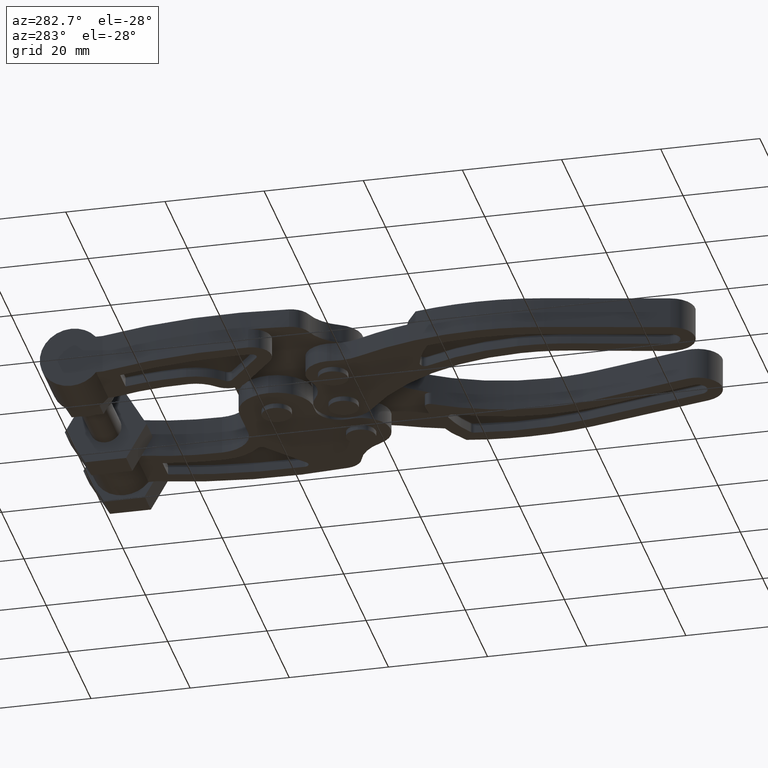
[diagram: clean part render]
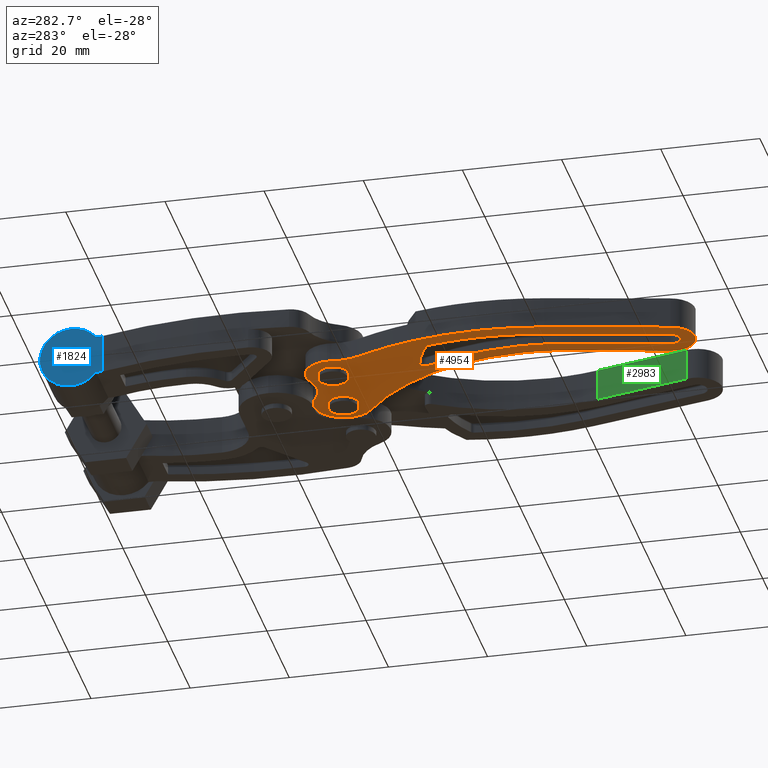
[diagram: same view with three faces highlighted in distinct colors, each labeled with its STEP entity id]
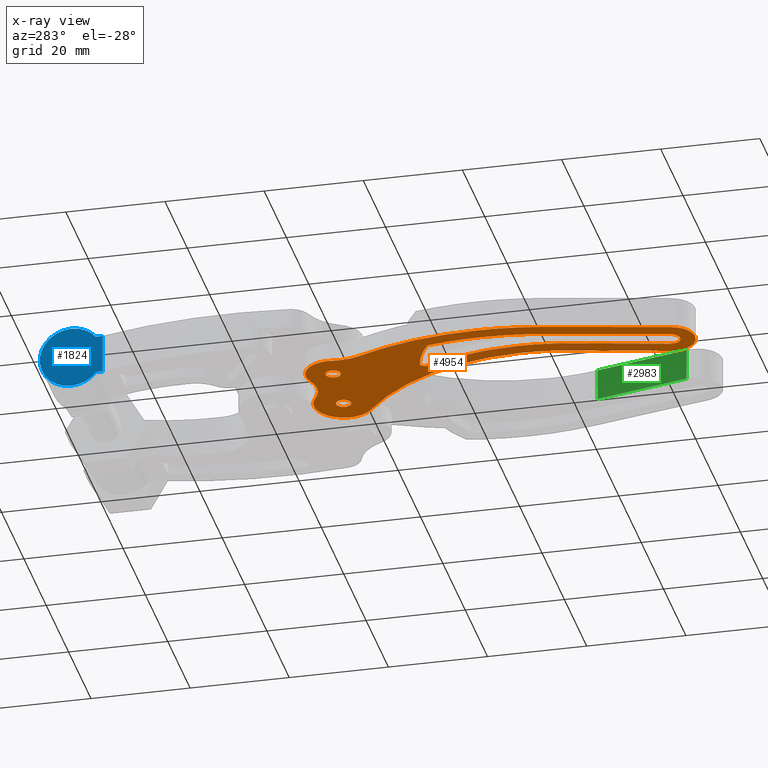
[diagram: x-ray of the same camera — body ghosted, the three highlighted faces saturated]
A machine part, auxiliary view with three faces highlighted in distinct colors.
The next image is the same camera in x-ray (body ghosted, the three faces saturated) — at least one of them is partly hidden behind the body in this view.
Their STEP definitions:

[orange] entity #4954 — the highlighted planar face has unit normal (0, 0, 1).
#7 = VERTEX_POINT ( 'NONE', #7761 ) ;
#15 = CARTESIAN_POINT ( 'NONE',  ( -12.18999999999992000, -82.15000000000009100, -3.900000000000000800 ) ) ;
#22 = VERTEX_POINT ( 'NONE', #8411 ) ;
#33 = AXIS2_PLACEMENT_3D ( 'NONE', #1773, #6457, #2440 ) ;
#37 = EDGE_CURVE ( 'NONE', #6304, #1316, #6363, .T. ) ;
#39 = DIRECTION ( 'NONE',  ( 1.000000000000000000, 0.0000000000000000000, 0.0000000000000000000 ) ) ;
#116 = EDGE_CURVE ( 'NONE', #4652, #6438, #2375, .T. ) ;
#228 = CIRCLE ( 'NONE', #4955, 1.500000000000001300 ) ;
#229 = CARTESIAN_POINT ( 'NONE',  ( 35.90000000000007000, -45.70000000000008800, -3.900000000000000800 ) ) ;
#231 = FACE_BOUND ( 'NONE', #8641, .T. ) ;
#270 = VERTEX_POINT ( 'NONE', #2428 ) ;
#312 = AXIS2_PLACEMENT_3D ( 'NONE', #6137, #2798, #7474 ) ;
#366 = DIRECTION ( 'NONE',  ( 0.0000000000000000000, 0.0000000000000000000, -1.000000000000000000 ) ) ;
#371 = DIRECTION ( 'NONE',  ( 0.0000000000000000000, 0.0000000000000000000, 1.000000000000000000 ) ) ;
#375 = CARTESIAN_POINT ( 'NONE',  ( -11.79261587243734300, -62.08773654748255000, -3.900000000000000800 ) ) ;
#499 = EDGE_CURVE ( 'NONE', #5284, #270, #4246, .T. ) ;
#509 = ORIENTED_EDGE ( 'NONE', *, *, #4927, .F. ) ;
#539 = VERTEX_POINT ( 'NONE', #7956 ) ;
#592 = ORIENTED_EDGE ( 'NONE', *, *, #4975, .F. ) ;
#626 = VERTEX_POINT ( 'NONE', #4154 ) ;
#645 = CIRCLE ( 'NONE', #33, 6.999999999999952000 ) ;
#682 = DIRECTION ( 'NONE',  ( -1.000000000000000000, 0.0000000000000000000, 0.0000000000000000000 ) ) ;
#688 = CARTESIAN_POINT ( 'NONE',  ( -7.323984661688473200, -81.00026319215328400, -3.900000000000000800 ) ) ;
#699 = AXIS2_PLACEMENT_3D ( 'NONE', #750, #5425, #1427 ) ;
#732 = VERTEX_POINT ( 'NONE', #1968 ) ;
#750 = CARTESIAN_POINT ( 'NONE',  ( 30.05511603704109900, -52.20000000000008100, -3.900000000000000800 ) ) ;
#814 = VECTOR ( 'NONE', #3851, 1000.000000000000100 ) ;
#861 = CARTESIAN_POINT ( 'NONE',  ( 6.591949208711867000E-014, -13.50000000000008500, -3.900000000000000800 ) ) ;
#868 = CARTESIAN_POINT ( 'NONE',  ( -12.94488396295891200, -52.20000000000008100, -3.900000000000000800 ) ) ;
#898 = DIRECTION ( 'NONE',  ( -1.000000000000000000, 0.0000000000000000000, 0.0000000000000000000 ) ) ;
#901 = CARTESIAN_POINT ( 'NONE',  ( 30.05511603704109900, -52.20000000000008100, -3.900000000000000800 ) ) ;
#1070 = DIRECTION ( 'NONE',  ( 1.000000000000000000, 0.0000000000000000000, -0.0000000000000000000 ) ) ;
#1113 = DIRECTION ( 'NONE',  ( 0.0000000000000000000, 0.0000000000000000000, -1.000000000000000000 ) ) ;
#1123 = DIRECTION ( 'NONE',  ( 1.000000000000000000, 0.0000000000000000000, 0.0000000000000000000 ) ) ;
#1214 = CARTESIAN_POINT ( 'NONE',  ( -12.49999999999999100, -14.20000000000000100, -3.900000000000000800 ) ) ;
#1294 = CIRCLE ( 'NONE', #4100, 60.00000000000000000 ) ;
#1316 = VERTEX_POINT ( 'NONE', #4931 ) ;
#1328 = AXIS2_PLACEMENT_3D ( 'NONE', #6386, #5061, #1070 ) ;
#1349 = CIRCLE ( 'NONE', #1507, 43.00000000000000700 ) ;
#1373 = CARTESIAN_POINT ( 'NONE',  ( -15.94488396295894900, -52.20000000000008100, -3.900000000000000800 ) ) ;
#1393 = AXIS2_PLACEMENT_3D ( 'NONE', #4172, #8192, #3501 ) ;
#1427 = DIRECTION ( 'NONE',  ( 1.000000000000000000, 0.0000000000000000000, 0.0000000000000000000 ) ) ;
#1462 = LINE ( 'NONE', #688, #1671 ) ;
#1504 = CARTESIAN_POINT ( 'NONE',  ( -13.99999999999999100, -14.20000000000000100, -3.900000000000000800 ) ) ;
#1507 = AXIS2_PLACEMENT_3D ( 'NONE', #8046, #4018, #39 ) ;
#1518 = VERTEX_POINT ( 'NONE', #8469 ) ;
#1577 = CIRCLE ( 'NONE', #6149, 0.9999999999999974500 ) ;
#1663 = LINE ( 'NONE', #2877, #6590 ) ;
#1671 = VECTOR ( 'NONE', #6052, 1000.000000000000000 ) ;
#1689 = VERTEX_POINT ( 'NONE', #3277 ) ;
#1773 = CARTESIAN_POINT ( 'NONE',  ( -7.378959491937813200, -2.797151929680732800, -3.900000000000000800 ) ) ;
#1880 = VERTEX_POINT ( 'NONE', #375 ) ;
#1882 = ORIENTED_EDGE ( 'NONE', *, *, #4457, .F. ) ;
#1885 = DIRECTION ( 'NONE',  ( -1.000000000000000000, 0.0000000000000000000, 0.0000000000000000000 ) ) ;
#1891 = ORIENTED_EDGE ( 'NONE', *, *, #6163, .F. ) ;
#1897 = EDGE_CURVE ( 'NONE', #1316, #3756, #6558, .T. ) ;
#1957 = ORIENTED_EDGE ( 'NONE', *, *, #5773, .F. ) ;
#1968 = CARTESIAN_POINT ( 'NONE',  ( -17.92922369092657000, -15.07950560764612500, -3.900000000000000800 ) ) ;
#2022 = DIRECTION ( 'NONE',  ( 0.0000000000000000000, 0.0000000000000000000, 1.000000000000000000 ) ) ;
#2050 = CARTESIAN_POINT ( 'NONE',  ( -3.405673611663585700, -8.560223967544979800, -3.900000000000000800 ) ) ;
#2131 = EDGE_CURVE ( 'NONE', #1518, #732, #2970, .T. ) ;
#2168 = CARTESIAN_POINT ( 'NONE',  ( -10.24674217645259100, -9.182746849059549600, -3.900000000000000800 ) ) ;
#2200 = CARTESIAN_POINT ( 'NONE',  ( -14.13976923983679300, -82.59542104955406200, -3.900000000000000800 ) ) ;
#2205 = CIRCLE ( 'NONE', #8657, 4.999999999999997300 ) ;
#2291 = ORIENTED_EDGE ( 'NONE', *, *, #7551, .F. ) ;
#2375 = CIRCLE ( 'NONE', #6743, 6.000000000000000000 ) ;
#2388 = VERTEX_POINT ( 'NONE', #868 ) ;
#2395 = CARTESIAN_POINT ( 'NONE',  ( -14.13976923983679300, -82.59542104955406200, -3.900000000000000800 ) ) ;
#2414 = CIRCLE ( 'NONE', #4737, 1.499999999999999100 ) ;
#2428 = CARTESIAN_POINT ( 'NONE',  ( -14.71222507542424100, -62.77757863219067500, -3.900000000000000800 ) ) ;
#2431 = CIRCLE ( 'NONE', #5019, 1.500000000000001300 ) ;
#2440 = DIRECTION ( 'NONE',  ( 1.000000000000000000, 0.0000000000000000000, 0.0000000000000000000 ) ) ;
#2662 = VERTEX_POINT ( 'NONE', #6295 ) ;
#2710 = ORIENTED_EDGE ( 'NONE', *, *, #4547, .F. ) ;
#2721 = DIRECTION ( 'NONE',  ( 0.0000000000000000000, 0.0000000000000000000, -1.000000000000000000 ) ) ;
#2798 = DIRECTION ( 'NONE',  ( 0.0000000000000000000, 0.0000000000000000000, -1.000000000000000000 ) ) ;
#2877 = CARTESIAN_POINT ( 'NONE',  ( -17.06442309959220400, -83.26355262388504700, -3.900000000000000800 ) ) ;
#2969 = CARTESIAN_POINT ( 'NONE',  ( -10.99999999999998900, -14.20000000000000100, -3.900000000000000800 ) ) ;
#2970 = CIRCLE ( 'NONE', #5514, 5.500000000000000900 ) ;
#2982 = CARTESIAN_POINT ( 'NONE',  ( -19.70911852159611400, -34.66817969679129900, -3.900000000000000800 ) ) ;
#2985 = ORIENTED_EDGE ( 'NONE', *, *, #1897, .F. ) ;
#2998 = AXIS2_PLACEMENT_3D ( 'NONE', #15, #4679, #682 ) ;
#3016 = DIRECTION ( 'NONE',  ( 0.0000000000000000000, 0.0000000000000000000, -1.000000000000000000 ) ) ;
#3050 = PLANE ( 'NONE',  #1328 ) ;
#3115 = CARTESIAN_POINT ( 'NONE',  ( -12.49999999999999100, -14.20000000000000100, -3.900000000000000800 ) ) ;
#3159 = AXIS2_PLACEMENT_3D ( 'NONE', #5041, #366, #4346 ) ;
#3162 = CIRCLE ( 'NONE', #1393, 46.00000000000005000 ) ;
#3172 = DIRECTION ( 'NONE',  ( 0.0000000000000000000, 0.0000000000000000000, 1.000000000000000000 ) ) ;
#3176 = EDGE_CURVE ( 'NONE', #626, #5284, #3162, .T. ) ;
#3190 = DIRECTION ( 'NONE',  ( 0.0000000000000000000, 0.0000000000000000000, -1.000000000000000000 ) ) ;
#3277 = CARTESIAN_POINT ( 'NONE',  ( -12.96421543139628700, -31.78095209741411900, -3.900000000000000800 ) ) ;
#3330 = EDGE_CURVE ( 'NONE', #732, #7943, #7970, .T. ) ;
#3337 = CARTESIAN_POINT ( 'NONE',  ( 3.680218290249986300, -18.23877551020416700, -3.900000000000000800 ) ) ;
#3360 = VECTOR ( 'NONE', #4412, 1000.000000000000100 ) ;
#3490 = AXIS2_PLACEMENT_3D ( 'NONE', #5106, #1113, #5793 ) ;
#3500 = DIRECTION ( 'NONE',  ( -1.000000000000000000, 0.0000000000000000000, 0.0000000000000000000 ) ) ;
#3501 = DIRECTION ( 'NONE',  ( -1.000000000000000000, 0.0000000000000000000, 0.0000000000000000000 ) ) ;
#3686 = DIRECTION ( 'NONE',  ( 0.0000000000000000000, 0.0000000000000000000, 1.000000000000000000 ) ) ;
#3756 = VERTEX_POINT ( 'NONE', #2982 ) ;
#3768 = DIRECTION ( 'NONE',  ( -1.000000000000000000, 0.0000000000000000000, 0.0000000000000000000 ) ) ;
#3851 = DIRECTION ( 'NONE',  ( 0.2299473615693592700, -0.9732030676622891500, 0.0000000000000000000 ) ) ;
#3891 = AXIS2_PLACEMENT_3D ( 'NONE', #8427, #7783, #1123 ) ;
#3924 = ORIENTED_EDGE ( 'NONE', *, *, #8546, .F. ) ;
#4018 = DIRECTION ( 'NONE',  ( -0.0000000000000000000, -0.0000000000000000000, -1.000000000000000000 ) ) ;
#4100 = AXIS2_PLACEMENT_3D ( 'NONE', #4355, #371, #5048 ) ;
#4154 = CARTESIAN_POINT ( 'NONE',  ( -11.82292939832786300, -33.16767721708215100, -3.900000000000000800 ) ) ;
#4172 = CARTESIAN_POINT ( 'NONE',  ( 30.05511603704109900, -52.20000000000008100, -3.900000000000000800 ) ) ;
#4221 = EDGE_CURVE ( 'NONE', #539, #8143, #1663, .T. ) ;
#4240 = EDGE_LOOP ( 'NONE', ( #6792, #2710 ) ) ;
#4246 = CIRCLE ( 'NONE', #6853, 46.00000000000005000 ) ;
#4291 = VERTEX_POINT ( 'NONE', #2969 ) ;
#4298 = CIRCLE ( 'NONE', #6542, 56.99999999999999300 ) ;
#4346 = DIRECTION ( 'NONE',  ( -1.000000000000000000, 0.0000000000000000000, 0.0000000000000000000 ) ) ;
#4355 = CARTESIAN_POINT ( 'NONE',  ( 35.90000000000007000, -45.70000000000008800, -3.900000000000000800 ) ) ;
#4359 = LINE ( 'NONE', #8543, #814 ) ;
#4403 = ORIENTED_EDGE ( 'NONE', *, *, #2131, .F. ) ;
#4412 = DIRECTION ( 'NONE',  ( -0.2227105247769928000, 0.9748846199184581000, 0.0000000000000000000 ) ) ;
#4457 = EDGE_CURVE ( 'NONE', #6438, #5923, #645, .T. ) ;
#4503 = ORIENTED_EDGE ( 'NONE', *, *, #6398, .F. ) ;
#4547 = EDGE_CURVE ( 'NONE', #4291, #6511, #228, .T. ) ;
#4581 = ORIENTED_EDGE ( 'NONE', *, *, #4642, .F. ) ;
#4602 = EDGE_LOOP ( 'NONE', ( #5787, #7428 ) ) ;
#4628 = CARTESIAN_POINT ( 'NONE',  ( -18.70046242223832100, -20.82452003924894200, -3.900000000000000800 ) ) ;
#4634 = AXIS2_PLACEMENT_3D ( 'NONE', #6033, #2022, #6701 ) ;
#4642 = EDGE_CURVE ( 'NONE', #7509, #5935, #6614, .T. ) ;
#4652 = VERTEX_POINT ( 'NONE', #3337 ) ;
#4679 = DIRECTION ( 'NONE',  ( 0.0000000000000000000, 0.0000000000000000000, -1.000000000000000000 ) ) ;
#4737 = AXIS2_PLACEMENT_3D ( 'NONE', #6729, #2721, #7393 ) ;
#4893 = DIRECTION ( 'NONE',  ( 0.0000000000000000000, 0.0000000000000000000, -1.000000000000000000 ) ) ;
#4906 = EDGE_CURVE ( 'NONE', #3756, #1689, #5560, .T. ) ;
#4927 = EDGE_CURVE ( 'NONE', #8143, #22, #2205, .T. ) ;
#4931 = CARTESIAN_POINT ( 'NONE',  ( -20.14780314990449700, -35.32484881702705300, -3.900000000000000800 ) ) ;
#4954 = ADVANCED_FACE ( 'NONE', ( #7545, #5351, #231, #7142 ), #3050, .F. ) ;
#4955 = AXIS2_PLACEMENT_3D ( 'NONE', #1214, #5903, #1885 ) ;
#4975 = EDGE_CURVE ( 'NONE', #5935, #6953, #5140, .T. ) ;
#5019 = AXIS2_PLACEMENT_3D ( 'NONE', #3115, #7796, #3768 ) ;
#5041 = CARTESIAN_POINT ( 'NONE',  ( 35.90000000000007000, -45.70000000000008800, -3.900000000000000800 ) ) ;
#5048 = DIRECTION ( 'NONE',  ( 1.000000000000000000, 0.0000000000000000000, 0.0000000000000000000 ) ) ;
#5061 = DIRECTION ( 'NONE',  ( 0.0000000000000000000, 0.0000000000000000000, 1.000000000000000000 ) ) ;
#5080 = EDGE_LOOP ( 'NONE', ( #509, #7146, #1891, #8114, #6002, #4403, #3924, #1882, #7689, #8550, #4503, #1957 ) ) ;
#5106 = CARTESIAN_POINT ( 'NONE',  ( -1.516845171422362400E-014, -13.50000000000003200, -3.900000000000000800 ) ) ;
#5140 = LINE ( 'NONE', #2395, #3360 ) ;
#5212 = EDGE_CURVE ( 'NONE', #2662, #5820, #2414, .T. ) ;
#5284 = VERTEX_POINT ( 'NONE', #1373 ) ;
#5334 = CIRCLE ( 'NONE', #3490, 1.499999999999999100 ) ;
#5351 = FACE_BOUND ( 'NONE', #4602, .T. ) ;
#5411 = ORIENTED_EDGE ( 'NONE', *, *, #37, .F. ) ;
#5425 = DIRECTION ( 'NONE',  ( -0.0000000000000000000, -0.0000000000000000000, -1.000000000000000000 ) ) ;
#5514 = AXIS2_PLACEMENT_3D ( 'NONE', #6957, #7622, #8297 ) ;
#5525 = EDGE_CURVE ( 'NONE', #5820, #2662, #5334, .T. ) ;
#5538 = DIRECTION ( 'NONE',  ( 0.2227105247769919900, -0.9748846199184583200, -0.0000000000000000000 ) ) ;
#5544 = DIRECTION ( 'NONE',  ( 1.000000000000000000, 0.0000000000000000000, 0.0000000000000000000 ) ) ;
#5560 = CIRCLE ( 'NONE', #7316, 21.49999999999999600 ) ;
#5773 = EDGE_CURVE ( 'NONE', #22, #1880, #1462, .T. ) ;
#5787 = ORIENTED_EDGE ( 'NONE', *, *, #5212, .F. ) ;
#5793 = DIRECTION ( 'NONE',  ( -1.000000000000000000, 0.0000000000000000000, 0.0000000000000000000 ) ) ;
#5794 = CIRCLE ( 'NONE', #699, 43.00000000000000700 ) ;
#5820 = VERTEX_POINT ( 'NONE', #6078 ) ;
#5903 = DIRECTION ( 'NONE',  ( 0.0000000000000000000, 0.0000000000000000000, -1.000000000000000000 ) ) ;
#5923 = VERTEX_POINT ( 'NONE', #2168 ) ;
#5935 = VERTEX_POINT ( 'NONE', #2200 ) ;
#6002 = ORIENTED_EDGE ( 'NONE', *, *, #3330, .F. ) ;
#6033 = CARTESIAN_POINT ( 'NONE',  ( -12.49999999999992700, -14.20000000000008500, -3.900000000000000800 ) ) ;
#6037 = ORIENTED_EDGE ( 'NONE', *, *, #8393, .F. ) ;
#6052 = DIRECTION ( 'NONE',  ( -0.2299473615693601000, 0.9732030676622890300, 0.0000000000000000000 ) ) ;
#6078 = CARTESIAN_POINT ( 'NONE',  ( 1.499999999999984000, -13.50000000000003200, -3.900000000000000800 ) ) ;
#6137 = CARTESIAN_POINT ( 'NONE',  ( -19.16450835780095800, -35.50686901321957100, -3.900000000000000800 ) ) ;
#6149 = AXIS2_PLACEMENT_3D ( 'NONE', #7203, #3190, #7874 ) ;
#6153 = AXIS2_PLACEMENT_3D ( 'NONE', #7181, #3172, #7849 ) ;
#6163 = EDGE_CURVE ( 'NONE', #7, #539, #7938, .T. ) ;
#6190 = CARTESIAN_POINT ( 'NONE',  ( -10.24359386467538300, -81.69010527686137400, -3.900000000000000800 ) ) ;
#6199 = EDGE_CURVE ( 'NONE', #270, #7509, #4359, .T. ) ;
#6295 = CARTESIAN_POINT ( 'NONE',  ( -1.500000000000014400, -13.50000000000003200, -3.900000000000000800 ) ) ;
#6304 = VERTEX_POINT ( 'NONE', #7288 ) ;
#6363 = CIRCLE ( 'NONE', #3159, 56.99999999999999300 ) ;
#6386 = CARTESIAN_POINT ( 'NONE',  ( -12.18999999999992000, -82.15000000000009100, -3.900000000000000800 ) ) ;
#6398 = EDGE_CURVE ( 'NONE', #1880, #2388, #1349, .T. ) ;
#6438 = VERTEX_POINT ( 'NONE', #2050 ) ;
#6457 = DIRECTION ( 'NONE',  ( -0.0000000000000000000, -0.0000000000000000000, -1.000000000000000000 ) ) ;
#6511 = VERTEX_POINT ( 'NONE', #1504 ) ;
#6542 = AXIS2_PLACEMENT_3D ( 'NONE', #229, #4893, #898 ) ;
#6558 = CIRCLE ( 'NONE', #312, 0.9999999999999592500 ) ;
#6590 = VECTOR ( 'NONE', #5538, 1000.000000000000000 ) ;
#6614 = CIRCLE ( 'NONE', #2998, 1.999999999999956700 ) ;
#6701 = DIRECTION ( 'NONE',  ( 1.000000000000000000, 0.0000000000000000000, 0.0000000000000000000 ) ) ;
#6729 = CARTESIAN_POINT ( 'NONE',  ( -1.516845171422362400E-014, -13.50000000000003200, -3.900000000000000800 ) ) ;
#6743 = AXIS2_PLACEMENT_3D ( 'NONE', #861, #8189, #5544 ) ;
#6792 = ORIENTED_EDGE ( 'NONE', *, *, #7794, .F. ) ;
#6801 = CIRCLE ( 'NONE', #4634, 5.500000000000000900 ) ;
#6842 = CARTESIAN_POINT ( 'NONE',  ( -19.66842333535204200, -58.39449991228858000, -3.900000000000000800 ) ) ;
#6850 = DIRECTION ( 'NONE',  ( -0.0000000000000000000, -0.0000000000000000000, 1.000000000000000000 ) ) ;
#6853 = AXIS2_PLACEMENT_3D ( 'NONE', #901, #6850, #3500 ) ;
#6953 = VERTEX_POINT ( 'NONE', #6842 ) ;
#6957 = CARTESIAN_POINT ( 'NONE',  ( -12.49999999999992700, -14.20000000000008500, -3.900000000000000800 ) ) ;
#7032 = CARTESIAN_POINT ( 'NONE',  ( -7.999999999999923600, -52.70000000000008100, -3.900000000000000800 ) ) ;
#7142 = FACE_OUTER_BOUND ( 'NONE', #5080, .T. ) ;
#7146 = ORIENTED_EDGE ( 'NONE', *, *, #4221, .F. ) ;
#7181 = CARTESIAN_POINT ( 'NONE',  ( 35.90000000000007000, -45.70000000000008800, -3.900000000000000800 ) ) ;
#7203 = CARTESIAN_POINT ( 'NONE',  ( -12.73332169040110700, -32.75393106962742700, -3.900000000000000800 ) ) ;
#7288 = CARTESIAN_POINT ( 'NONE',  ( -21.09999999999992300, -45.70000000000008800, -3.900000000000000800 ) ) ;
#7316 = AXIS2_PLACEMENT_3D ( 'NONE', #7032, #3016, #7688 ) ;
#7393 = DIRECTION ( 'NONE',  ( -1.000000000000000000, 0.0000000000000000000, 0.0000000000000000000 ) ) ;
#7420 = ORIENTED_EDGE ( 'NONE', *, *, #4906, .F. ) ;
#7428 = ORIENTED_EDGE ( 'NONE', *, *, #5525, .F. ) ;
#7433 = EDGE_CURVE ( 'NONE', #2388, #4652, #5794, .T. ) ;
#7474 = DIRECTION ( 'NONE',  ( -1.000000000000000000, 0.0000000000000000000, 0.0000000000000000000 ) ) ;
#7509 = VERTEX_POINT ( 'NONE', #6190 ) ;
#7545 = FACE_BOUND ( 'NONE', #4240, .T. ) ;
#7551 = EDGE_CURVE ( 'NONE', #6953, #6304, #4298, .T. ) ;
#7552 = CARTESIAN_POINT ( 'NONE',  ( -17.06442309959220400, -83.26355262388504700, -3.900000000000000800 ) ) ;
#7622 = DIRECTION ( 'NONE',  ( 0.0000000000000000000, 0.0000000000000000000, 1.000000000000000000 ) ) ;
#7688 = DIRECTION ( 'NONE',  ( -1.000000000000000000, 0.0000000000000000000, 0.0000000000000000000 ) ) ;
#7689 = ORIENTED_EDGE ( 'NONE', *, *, #116, .F. ) ;
#7713 = EDGE_CURVE ( 'NONE', #7943, #7, #1294, .T. ) ;
#7718 = CARTESIAN_POINT ( 'NONE',  ( -12.18999999999992000, -82.15000000000009100, -3.900000000000000800 ) ) ;
#7761 = CARTESIAN_POINT ( 'NONE',  ( -24.09999999999992000, -45.70000000000008800, -3.900000000000000800 ) ) ;
#7783 = DIRECTION ( 'NONE',  ( -0.0000000000000000000, -0.0000000000000000000, -1.000000000000000000 ) ) ;
#7794 = EDGE_CURVE ( 'NONE', #6511, #4291, #2431, .T. ) ;
#7796 = DIRECTION ( 'NONE',  ( 0.0000000000000000000, 0.0000000000000000000, -1.000000000000000000 ) ) ;
#7849 = DIRECTION ( 'NONE',  ( 1.000000000000000000, 0.0000000000000000000, 0.0000000000000000000 ) ) ;
#7874 = DIRECTION ( 'NONE',  ( -1.000000000000000000, 0.0000000000000000000, 0.0000000000000000000 ) ) ;
#7938 = CIRCLE ( 'NONE', #6153, 60.00000000000000000 ) ;
#7943 = VERTEX_POINT ( 'NONE', #4628 ) ;
#7956 = CARTESIAN_POINT ( 'NONE',  ( -22.59307719510741900, -59.06263148661962200, -3.900000000000000800 ) ) ;
#7970 = CIRCLE ( 'NONE', #3891, 9.999999999999960900 ) ;
#8046 = CARTESIAN_POINT ( 'NONE',  ( 30.05511603704109900, -52.20000000000008100, -3.900000000000000800 ) ) ;
#8114 = ORIENTED_EDGE ( 'NONE', *, *, #7713, .F. ) ;
#8143 = VERTEX_POINT ( 'NONE', #7552 ) ;
#8174 = ORIENTED_EDGE ( 'NONE', *, *, #499, .F. ) ;
#8189 = DIRECTION ( 'NONE',  ( 0.0000000000000000000, 0.0000000000000000000, 1.000000000000000000 ) ) ;
#8192 = DIRECTION ( 'NONE',  ( -0.0000000000000000000, -0.0000000000000000000, 1.000000000000000000 ) ) ;
#8297 = DIRECTION ( 'NONE',  ( 1.000000000000000000, 0.0000000000000000000, 0.0000000000000000000 ) ) ;
#8393 = EDGE_CURVE ( 'NONE', #1689, #626, #1577, .T. ) ;
#8397 = ORIENTED_EDGE ( 'NONE', *, *, #3176, .F. ) ;
#8406 = DIRECTION ( 'NONE',  ( 1.000000000000000000, 0.0000000000000000000, 0.0000000000000000000 ) ) ;
#8411 = CARTESIAN_POINT ( 'NONE',  ( -7.323984661688473200, -81.00026319215328400, -3.900000000000000800 ) ) ;
#8427 = CARTESIAN_POINT ( 'NONE',  ( -27.80053949261134600, -16.67860671245708900, -3.900000000000000800 ) ) ;
#8469 = CARTESIAN_POINT ( 'NONE',  ( -17.99999999999992900, -14.20000000000008500, -3.900000000000000800 ) ) ;
#8535 = ORIENTED_EDGE ( 'NONE', *, *, #6199, .F. ) ;
#8543 = CARTESIAN_POINT ( 'NONE',  ( -14.71222507542423900, -62.77757863219067500, -3.900000000000000800 ) ) ;
#8546 = EDGE_CURVE ( 'NONE', #5923, #1518, #6801, .T. ) ;
#8550 = ORIENTED_EDGE ( 'NONE', *, *, #7433, .F. ) ;
#8641 = EDGE_LOOP ( 'NONE', ( #8535, #8174, #8397, #6037, #7420, #2985, #5411, #2291, #592, #4581 ) ) ;
#8657 = AXIS2_PLACEMENT_3D ( 'NONE', #7718, #3686, #8406 ) ;

[blue] entity #1824 — the highlighted planar face has unit normal (1, 0, 0).
#65 = VERTEX_POINT ( 'NONE', #1805 ) ;
#147 = ORIENTED_EDGE ( 'NONE', *, *, #1351, .F. ) ;
#404 = CARTESIAN_POINT ( 'NONE',  ( -23.70000000000002100, 36.09999999999998000, 6.250000000000000000 ) ) ;
#472 = AXIS2_PLACEMENT_3D ( 'NONE', #7895, #1140, #7750 ) ;
#553 = VECTOR ( 'NONE', #5675, 1000.000000000000000 ) ;
#762 = LINE ( 'NONE', #8331, #553 ) ;
#866 = VERTEX_POINT ( 'NONE', #8533 ) ;
#906 = EDGE_LOOP ( 'NONE', ( #7795, #147, #8119, #2740, #1527, #2378 ) ) ;
#1140 = DIRECTION ( 'NONE',  ( 1.000000000000000000, 2.565222340100703000E-016, 6.940378706500224900E-018 ) ) ;
#1261 = CARTESIAN_POINT ( 'NONE',  ( -23.70000000000002100, 36.09999999999998000, -6.450000000000002800 ) ) ;
#1330 = AXIS2_PLACEMENT_3D ( 'NONE', #6198, #2174, #6862 ) ;
#1351 = EDGE_CURVE ( 'NONE', #1470, #3257, #8332, .T. ) ;
#1419 = DIRECTION ( 'NONE',  ( 0.0000000000000000000, 0.0000000000000000000, -1.000000000000000000 ) ) ;
#1470 = VERTEX_POINT ( 'NONE', #404 ) ;
#1527 = ORIENTED_EDGE ( 'NONE', *, *, #2624, .T. ) ;
#1716 = CIRCLE ( 'NONE', #1330, 6.350000000000001400 ) ;
#1735 = EDGE_CURVE ( 'NONE', #65, #7294, #2246, .T. ) ;
#1805 = CARTESIAN_POINT ( 'NONE',  ( -23.70000000000002100, 31.08876262785324600, -3.999999999999998200 ) ) ;
#1816 = DIRECTION ( 'NONE',  ( 6.940378706500224900E-018, -2.168418717033176300E-019, -1.000000000000000000 ) ) ;
#1824 = ADVANCED_FACE ( 'NONE', ( #5602 ), #4094, .F. ) ;
#2174 = DIRECTION ( 'NONE',  ( 1.000000000000000000, 2.565222340100703000E-016, 6.940378706500224900E-018 ) ) ;
#2246 = CIRCLE ( 'NONE', #472, 6.350000000000001400 ) ;
#2256 = CARTESIAN_POINT ( 'NONE',  ( -23.70000000000001400, 29.74999999999997900, -4.000000000000000900 ) ) ;
#2304 = EDGE_CURVE ( 'NONE', #7294, #1470, #1716, .T. ) ;
#2378 = ORIENTED_EDGE ( 'NONE', *, *, #7180, .T. ) ;
#2438 = AXIS2_PLACEMENT_3D ( 'NONE', #4743, #5417, #1419 ) ;
#2624 = EDGE_CURVE ( 'NONE', #65, #7623, #762, .T. ) ;
#2740 = ORIENTED_EDGE ( 'NONE', *, *, #1735, .F. ) ;
#2966 = VECTOR ( 'NONE', #7745, 1000.000000000000000 ) ;
#3121 = LINE ( 'NONE', #8020, #4681 ) ;
#3257 = VERTEX_POINT ( 'NONE', #7379 ) ;
#4034 = DIRECTION ( 'NONE',  ( 1.000000000000000000, 2.565222340100703000E-016, 6.940378706500224900E-018 ) ) ;
#4094 = PLANE ( 'NONE',  #7208 ) ;
#4678 = DIRECTION ( 'NONE',  ( 2.565222340100703000E-016, -1.000000000000000000, 2.168418717033194100E-019 ) ) ;
#4681 = VECTOR ( 'NONE', #4678, 1000.000000000000000 ) ;
#4743 = CARTESIAN_POINT ( 'NONE',  ( -23.70000000000002100, 36.09999999999998000, -0.1000000000000012300 ) ) ;
#5109 = CARTESIAN_POINT ( 'NONE',  ( -23.70000000000001400, 29.74999999999997900, -4.000000000000000900 ) ) ;
#5417 = DIRECTION ( 'NONE',  ( 1.000000000000000000, 2.565222340100703000E-016, 6.940378706500224900E-018 ) ) ;
#5602 = FACE_OUTER_BOUND ( 'NONE', #906, .T. ) ;
#5675 = DIRECTION ( 'NONE',  ( 2.565222340100703000E-016, -1.000000000000000000, 2.168418717033194100E-019 ) ) ;
#6198 = CARTESIAN_POINT ( 'NONE',  ( -23.70000000000002100, 36.09999999999998000, -0.1000000000000012300 ) ) ;
#6387 = EDGE_CURVE ( 'NONE', #3257, #866, #3121, .T. ) ;
#6529 = LINE ( 'NONE', #5109, #2966 ) ;
#6862 = DIRECTION ( 'NONE',  ( 0.0000000000000000000, 0.0000000000000000000, -1.000000000000000000 ) ) ;
#7180 = EDGE_CURVE ( 'NONE', #7623, #866, #6529, .T. ) ;
#7208 = AXIS2_PLACEMENT_3D ( 'NONE', #7858, #4034, #1816 ) ;
#7294 = VERTEX_POINT ( 'NONE', #1261 ) ;
#7379 = CARTESIAN_POINT ( 'NONE',  ( -23.70000000000002100, 31.16821533316789700, 3.899999999999996400 ) ) ;
#7623 = VERTEX_POINT ( 'NONE', #2256 ) ;
#7745 = DIRECTION ( 'NONE',  ( -6.940378706500224900E-018, 2.168418717033176300E-019, 1.000000000000000000 ) ) ;
#7750 = DIRECTION ( 'NONE',  ( 0.0000000000000000000, 0.0000000000000000000, -1.000000000000000000 ) ) ;
#7795 = ORIENTED_EDGE ( 'NONE', *, *, #6387, .F. ) ;
#7858 = CARTESIAN_POINT ( 'NONE',  ( -23.70000000000002100, 42.45099999999998600, -4.000000000000000900 ) ) ;
#7895 = CARTESIAN_POINT ( 'NONE',  ( -23.70000000000002100, 36.09999999999998000, -0.1000000000000012300 ) ) ;
#8020 = CARTESIAN_POINT ( 'NONE',  ( -23.70000000000002100, 42.45099999999998600, 3.899999999999999000 ) ) ;
#8119 = ORIENTED_EDGE ( 'NONE', *, *, #2304, .F. ) ;
#8331 = CARTESIAN_POINT ( 'NONE',  ( -23.70000000000002100, 42.45099999999998600, -4.000000000000000900 ) ) ;
#8332 = CIRCLE ( 'NONE', #2438, 6.350000000000001400 ) ;
#8533 = CARTESIAN_POINT ( 'NONE',  ( -23.70000000000001400, 29.74999999999997900, 3.899999999999999000 ) ) ;

[green] entity #2983 — the highlighted planar face has unit normal (0.9732, -0.2299, -0).
#169 = ORIENTED_EDGE ( 'NONE', *, *, #1710, .F. ) ;
#617 = VERTEX_POINT ( 'NONE', #6231 ) ;
#643 = VECTOR ( 'NONE', #8485, 1000.000000000000000 ) ;
#1035 = DIRECTION ( 'NONE',  ( 0.2299473615693609900, 0.9732030676622888100, 1.114732878441971300E-021 ) ) ;
#1371 = EDGE_LOOP ( 'NONE', ( #4978, #4143, #169, #3637 ) ) ;
#1484 = CARTESIAN_POINT ( 'NONE',  ( 7.323984661688393200, -81.00026319215329800, -2.500000000000000400 ) ) ;
#1710 = EDGE_CURVE ( 'NONE', #617, #2829, #6238, .T. ) ;
#1775 = VECTOR ( 'NONE', #4115, 1000.000000000000000 ) ;
#2386 = LINE ( 'NONE', #7034, #3078 ) ;
#2759 = CARTESIAN_POINT ( 'NONE',  ( 11.79261587243728100, -62.08773654748257100, -2.500000000000000400 ) ) ;
#2829 = VERTEX_POINT ( 'NONE', #2759 ) ;
#2983 = ADVANCED_FACE ( 'NONE', ( #6101 ), #6632, .F. ) ;
#3078 = VECTOR ( 'NONE', #1035, 1000.000000000000000 ) ;
#3254 = DIRECTION ( 'NONE',  ( -0.2299473615693609900, -0.9732030676622888100, -1.114732878441971300E-021 ) ) ;
#3376 = EDGE_CURVE ( 'NONE', #2829, #8157, #4390, .T. ) ;
#3521 = LINE ( 'NONE', #1484, #1775 ) ;
#3637 = ORIENTED_EDGE ( 'NONE', *, *, #5888, .T. ) ;
#3994 = CARTESIAN_POINT ( 'NONE',  ( 11.79261587243728100, -62.08773654748257100, -2.500000000000000400 ) ) ;
#4115 = DIRECTION ( 'NONE',  ( 1.337595912553557800E-021, -1.441167026697434900E-021, 1.000000000000000000 ) ) ;
#4143 = ORIENTED_EDGE ( 'NONE', *, *, #3376, .F. ) ;
#4311 = CARTESIAN_POINT ( 'NONE',  ( 7.323984661688393200, -81.00026319215329800, 3.899999999999999900 ) ) ;
#4390 = LINE ( 'NONE', #3994, #643 ) ;
#4894 = VERTEX_POINT ( 'NONE', #4311 ) ;
#4978 = ORIENTED_EDGE ( 'NONE', *, *, #6641, .T. ) ;
#5888 = EDGE_CURVE ( 'NONE', #617, #4894, #3521, .T. ) ;
#6035 = VECTOR ( 'NONE', #7298, 1000.000000000000000 ) ;
#6101 = FACE_OUTER_BOUND ( 'NONE', #1371, .T. ) ;
#6231 = CARTESIAN_POINT ( 'NONE',  ( 7.323984661688393200, -81.00026319215329800, -2.500000000000000400 ) ) ;
#6238 = LINE ( 'NONE', #8627, #6035 ) ;
#6632 = PLANE ( 'NONE',  #7110 ) ;
#6641 = EDGE_CURVE ( 'NONE', #4894, #8157, #2386, .T. ) ;
#7034 = CARTESIAN_POINT ( 'NONE',  ( 7.323984661688393200, -81.00026319215329800, 3.899999999999999900 ) ) ;
#7110 = AXIS2_PLACEMENT_3D ( 'NONE', #7967, #7930, #3254 ) ;
#7298 = DIRECTION ( 'NONE',  ( 0.2299473615693609900, 0.9732030676622888100, 1.114732878441971300E-021 ) ) ;
#7930 = DIRECTION ( 'NONE',  ( 0.9732030676622889200, -0.2299473615693610200, -1.664937880386157600E-021 ) ) ;
#7967 = CARTESIAN_POINT ( 'NONE',  ( 7.323984661688393200, -81.00026319215329800, -2.500000000000000400 ) ) ;
#8157 = VERTEX_POINT ( 'NONE', #8243 ) ;
#8243 = CARTESIAN_POINT ( 'NONE',  ( 11.79261587243728100, -62.08773654748257100, 3.899999999999999900 ) ) ;
#8485 = DIRECTION ( 'NONE',  ( 1.337595912553557800E-021, -1.441167026697434900E-021, 1.000000000000000000 ) ) ;
#8627 = CARTESIAN_POINT ( 'NONE',  ( 7.323984661688393200, -81.00026319215329800, -2.500000000000000400 ) ) ;